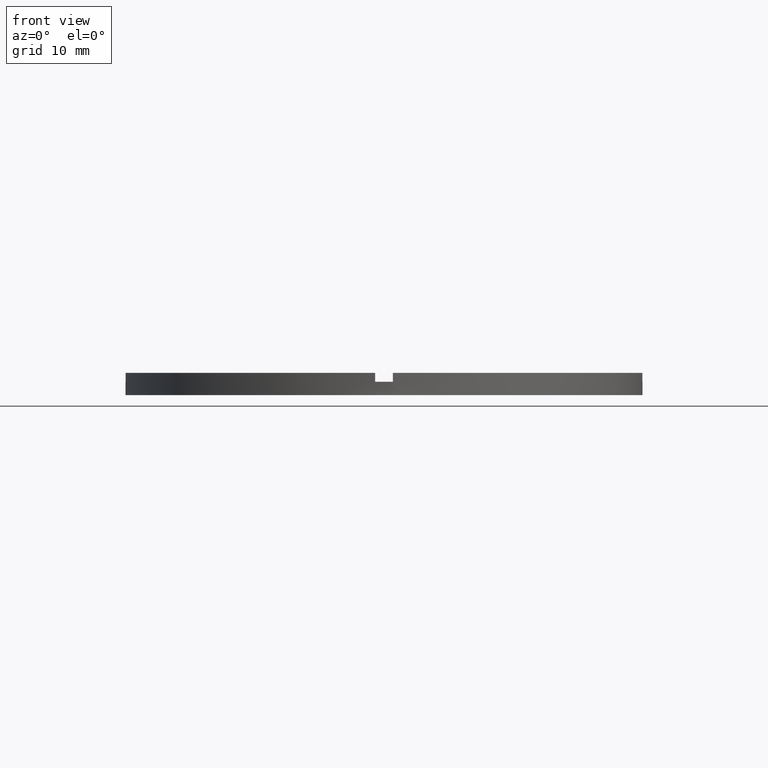
[diagram: clean part render]
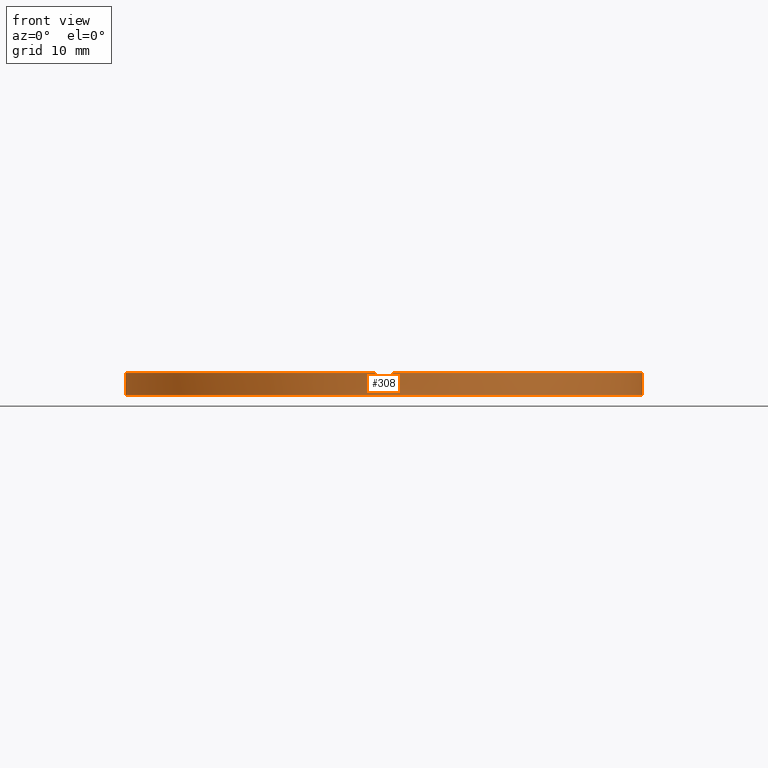
[diagram: same view with one face highlighted and labeled with its STEP entity id]
A machine part, front view. The second image highlights one B-rep face of the part: STEP entity #308.
In plain terms, the highlighted cylindrical surface (partial cylindrical patch) has radius 29 mm, axis along (-0, -0, -1).
Its self-contained STEP definition (entity closure, byte-faithful):
#19 = CARTESIAN_POINT ( 'NONE',  ( 29.00000000000000000, 3.551475717527324030E-15, 1.500000000000000000 ) ) ;
#22 = ORIENTED_EDGE ( 'NONE', *, *, #491, .F. ) ;
#24 = ORIENTED_EDGE ( 'NONE', *, *, #418, .F. ) ;
#54 = ORIENTED_EDGE ( 'NONE', *, *, #64, .T. ) ;
#57 = VERTEX_POINT ( 'NONE', #434 ) ;
#61 = VERTEX_POINT ( 'NONE', #136 ) ;
#64 = EDGE_CURVE ( 'NONE', #550, #541, #594, .T. ) ;
#66 = CARTESIAN_POINT ( 'NONE',  ( 29.00000000000000000, 3.551475717527324030E-15, 0.000000000000000000 ) ) ;
#67 = AXIS2_PLACEMENT_3D ( 'NONE', #373, #523, #773 ) ;
#69 = CARTESIAN_POINT ( 'NONE',  ( 0.9999999999998404610, -28.98275349237888321, 1.500000000000000000 ) ) ;
#72 = VECTOR ( 'NONE', #626, 1000.000000000000000 ) ;
#74 = FACE_OUTER_BOUND ( 'NONE', #316, .T. ) ;
#75 = LINE ( 'NONE', #577, #341 ) ;
#83 = LINE ( 'NONE', #685, #90 ) ;
#88 = CARTESIAN_POINT ( 'NONE',  ( 0.9999999999998404610, -28.98275349237888321, 2.500000000000000000 ) ) ;
#90 = VECTOR ( 'NONE', #525, 1000.000000000000000 ) ;
#94 = AXIS2_PLACEMENT_3D ( 'NONE', #415, #356, #420 ) ;
#101 = LINE ( 'NONE', #277, #624 ) ;
#109 = CIRCLE ( 'NONE', #585, 29.00000000000000000 ) ;
#115 = DIRECTION ( 'NONE',  ( 1.000000000000000000, 0.000000000000000000, 0.000000000000000000 ) ) ;
#136 = CARTESIAN_POINT ( 'NONE',  ( -28.98275349237887610, -1.000000000000027311, 2.500000000000000000 ) ) ;
#146 = ORIENTED_EDGE ( 'NONE', *, *, #673, .F. ) ;
#149 = ORIENTED_EDGE ( 'NONE', *, *, #675, .F. ) ;
#153 = AXIS2_PLACEMENT_3D ( 'NONE', #445, #424, #263 ) ;
#168 = CARTESIAN_POINT ( 'NONE',  ( 0.000000000000000000, 0.000000000000000000, 2.500000000000000000 ) ) ;
#180 = CIRCLE ( 'NONE', #153, 29.00000000000000000 ) ;
#184 = ORIENTED_EDGE ( 'NONE', *, *, #250, .T. ) ;
#193 = VERTEX_POINT ( 'NONE', #69 ) ;
#195 = VERTEX_POINT ( 'NONE', #237 ) ;
#208 = CARTESIAN_POINT ( 'NONE',  ( 0.000000000000000000, 0.000000000000000000, 1.500000000000000000 ) ) ;
#216 = CARTESIAN_POINT ( 'NONE',  ( 0.000000000000000000, 0.000000000000000000, 0.000000000000000000 ) ) ;
#217 = CARTESIAN_POINT ( 'NONE',  ( -1.000000000000159650, -28.98275349237887255, 2.500000000000000000 ) ) ;
#237 = CARTESIAN_POINT ( 'NONE',  ( -1.000000000000159650, -28.98275349237887255, 1.500000000000000000 ) ) ;
#238 = ORIENTED_EDGE ( 'NONE', *, *, #393, .F. ) ;
#248 = CARTESIAN_POINT ( 'NONE',  ( -29.00000000000000000, 0.000000000000000000, 0.000000000000000000 ) ) ;
#250 = EDGE_CURVE ( 'NONE', #195, #293, #83, .T. ) ;
#263 = DIRECTION ( 'NONE',  ( 1.000000000000000000, 0.000000000000000000, 0.000000000000000000 ) ) ;
#266 = CARTESIAN_POINT ( 'NONE',  ( 28.98275349237887255, -1.000000000000156763, 2.500000000000000000 ) ) ;
#277 = CARTESIAN_POINT ( 'NONE',  ( 29.00000000000000000, 3.551475717527324030E-15, 2.500000000000000000 ) ) ;
#291 = VERTEX_POINT ( 'NONE', #19 ) ;
#293 = VERTEX_POINT ( 'NONE', #217 ) ;
#308 = ADVANCED_FACE ( 'NONE', ( #74 ), #591, .T. ) ;
#316 = EDGE_LOOP ( 'NONE', ( #238, #22, #414, #24, #608, #149, #184, #146, #723, #399, #54, #536 ) ) ;
#321 = EDGE_CURVE ( 'NONE', #538, #193, #75, .T. ) ;
#322 = CARTESIAN_POINT ( 'NONE',  ( 0.000000000000000000, 0.000000000000000000, 2.500000000000000000 ) ) ;
#328 = DIRECTION ( 'NONE',  ( 1.000000000000000000, 0.000000000000000000, 0.000000000000000000 ) ) ;
#341 = VECTOR ( 'NONE', #587, 1000.000000000000000 ) ;
#343 = DIRECTION ( 'NONE',  ( 0.000000000000000000, 0.000000000000000000, 1.000000000000000000 ) ) ;
#347 = EDGE_CURVE ( 'NONE', #61, #573, #619, .T. ) ;
#356 = DIRECTION ( 'NONE',  ( -0.000000000000000000, -0.000000000000000000, -1.000000000000000000 ) ) ;
#365 = CIRCLE ( 'NONE', #516, 29.00000000000000000 ) ;
#373 = CARTESIAN_POINT ( 'NONE',  ( 0.000000000000000000, 0.000000000000000000, 1.500000000000000000 ) ) ;
#375 = VECTOR ( 'NONE', #376, 1000.000000000000000 ) ;
#376 = DIRECTION ( 'NONE',  ( -0.000000000000000000, -0.000000000000000000, -1.000000000000000000 ) ) ;
#389 = CARTESIAN_POINT ( 'NONE',  ( 28.98275349237887255, -1.000000000000156763, 1.500000000000000000 ) ) ;
#391 = AXIS2_PLACEMENT_3D ( 'NONE', #168, #484, #435 ) ;
#393 = EDGE_CURVE ( 'NONE', #291, #759, #101, .T. ) ;
#399 = ORIENTED_EDGE ( 'NONE', *, *, #597, .F. ) ;
#403 = DIRECTION ( 'NONE',  ( 0.000000000000000000, 0.000000000000000000, 1.000000000000000000 ) ) ;
#407 = CARTESIAN_POINT ( 'NONE',  ( -28.98275349237887610, -1.000000000000027311, 1.500000000000000000 ) ) ;
#414 = ORIENTED_EDGE ( 'NONE', *, *, #775, .T. ) ;
#415 = CARTESIAN_POINT ( 'NONE',  ( 0.000000000000000000, 0.000000000000000000, 2.500000000000000000 ) ) ;
#417 = VERTEX_POINT ( 'NONE', #389 ) ;
#418 = EDGE_CURVE ( 'NONE', #538, #57, #109, .T. ) ;
#420 = DIRECTION ( 'NONE',  ( -1.000000000000000000, 0.000000000000000000, 0.000000000000000000 ) ) ;
#424 = DIRECTION ( 'NONE',  ( 0.000000000000000000, 0.000000000000000000, 1.000000000000000000 ) ) ;
#434 = CARTESIAN_POINT ( 'NONE',  ( 28.98275349237887255, -1.000000000000156763, 2.500000000000000000 ) ) ;
#435 = DIRECTION ( 'NONE',  ( 1.000000000000000000, 0.000000000000000000, 0.000000000000000000 ) ) ;
#443 = CARTESIAN_POINT ( 'NONE',  ( -29.00000000000000000, 0.000000000000000000, 2.500000000000000000 ) ) ;
#445 = CARTESIAN_POINT ( 'NONE',  ( 0.000000000000000000, 0.000000000000000000, 1.500000000000000000 ) ) ;
#461 = EDGE_CURVE ( 'NONE', #541, #759, #365, .T. ) ;
#462 = CIRCLE ( 'NONE', #391, 29.00000000000000000 ) ;
#465 = CIRCLE ( 'NONE', #67, 29.00000000000000000 ) ;
#477 = LINE ( 'NONE', #266, #719 ) ;
#479 = DIRECTION ( 'NONE',  ( -0.000000000000000000, -0.000000000000000000, -1.000000000000000000 ) ) ;
#484 = DIRECTION ( 'NONE',  ( 0.000000000000000000, 0.000000000000000000, 1.000000000000000000 ) ) ;
#491 = EDGE_CURVE ( 'NONE', #417, #291, #625, .T. ) ;
#494 = AXIS2_PLACEMENT_3D ( 'NONE', #208, #343, #745 ) ;
#516 = AXIS2_PLACEMENT_3D ( 'NONE', #216, #697, #115 ) ;
#523 = DIRECTION ( 'NONE',  ( -0.000000000000000000, 0.000000000000000000, 1.000000000000000000 ) ) ;
#525 = DIRECTION ( 'NONE',  ( 0.000000000000000000, 0.000000000000000000, 1.000000000000000000 ) ) ;
#526 = CARTESIAN_POINT ( 'NONE',  ( -28.98275349237887610, -1.000000000000027311, 2.500000000000000000 ) ) ;
#536 = ORIENTED_EDGE ( 'NONE', *, *, #461, .T. ) ;
#538 = VERTEX_POINT ( 'NONE', #88 ) ;
#541 = VERTEX_POINT ( 'NONE', #248 ) ;
#550 = VERTEX_POINT ( 'NONE', #559 ) ;
#559 = CARTESIAN_POINT ( 'NONE',  ( -29.00000000000000000, 0.000000000000000000, 1.500000000000000000 ) ) ;
#573 = VERTEX_POINT ( 'NONE', #407 ) ;
#577 = CARTESIAN_POINT ( 'NONE',  ( 0.9999999999998404610, -28.98275349237888321, 2.500000000000000000 ) ) ;
#585 = AXIS2_PLACEMENT_3D ( 'NONE', #322, #403, #328 ) ;
#587 = DIRECTION ( 'NONE',  ( -0.000000000000000000, -0.000000000000000000, -1.000000000000000000 ) ) ;
#591 = CYLINDRICAL_SURFACE ( 'NONE', #94, 29.00000000000000000 ) ;
#594 = LINE ( 'NONE', #443, #72 ) ;
#597 = EDGE_CURVE ( 'NONE', #550, #573, #180, .T. ) ;
#608 = ORIENTED_EDGE ( 'NONE', *, *, #321, .T. ) ;
#619 = LINE ( 'NONE', #526, #375 ) ;
#624 = VECTOR ( 'NONE', #479, 1000.000000000000000 ) ;
#625 = CIRCLE ( 'NONE', #494, 29.00000000000000000 ) ;
#626 = DIRECTION ( 'NONE',  ( -0.000000000000000000, -0.000000000000000000, -1.000000000000000000 ) ) ;
#657 = DIRECTION ( 'NONE',  ( 0.000000000000000000, 0.000000000000000000, 1.000000000000000000 ) ) ;
#673 = EDGE_CURVE ( 'NONE', #61, #293, #462, .T. ) ;
#675 = EDGE_CURVE ( 'NONE', #195, #193, #465, .T. ) ;
#685 = CARTESIAN_POINT ( 'NONE',  ( -1.000000000000159650, -28.98275349237887255, 2.500000000000000000 ) ) ;
#697 = DIRECTION ( 'NONE',  ( 0.000000000000000000, 0.000000000000000000, 1.000000000000000000 ) ) ;
#719 = VECTOR ( 'NONE', #657, 1000.000000000000000 ) ;
#723 = ORIENTED_EDGE ( 'NONE', *, *, #347, .T. ) ;
#745 = DIRECTION ( 'NONE',  ( 1.000000000000000000, 0.000000000000000000, 0.000000000000000000 ) ) ;
#759 = VERTEX_POINT ( 'NONE', #66 ) ;
#773 = DIRECTION ( 'NONE',  ( 1.000000000000000000, 0.000000000000000000, 0.000000000000000000 ) ) ;
#775 = EDGE_CURVE ( 'NONE', #417, #57, #477, .T. ) ;